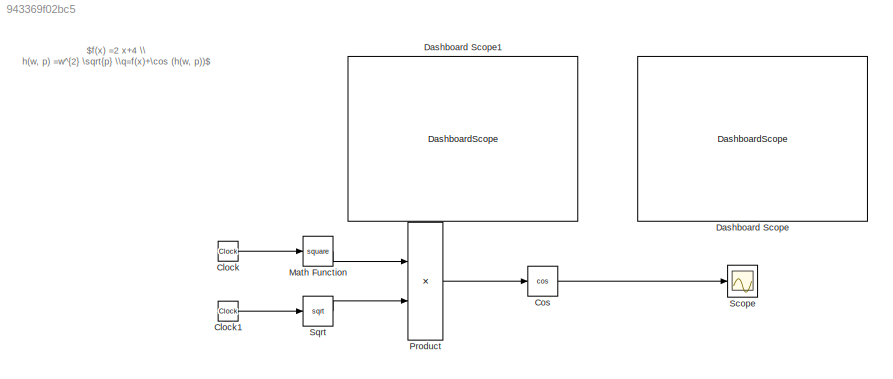
MODEL slx_943369f02bc5
KIND model
CONFIG AbsTol = auto
CONFIG EnableMultiTasking = off
CONFIG FixedStep = auto
CONFIG MaxStep = auto
CONFIG MinStep = auto
CONFIG RelTol = 1e-3
CONFIG SampleTimeConstraint = Unconstrained
CONFIG Solver = VariableStepAuto
CONFIG SolverName = VariableStepAuto
CONFIG StartTime = 0.0
CONFIG StopTime = 5
BLOCK [Clock] Clock
  Decimation = 1
BLOCK [Clock] Clock1
  Decimation = 1
BLOCK [Trigonometry] Cos
  Operator = cos
  Ports = [1, 1]
BLOCK [DashboardScope] Dashboard Scope
BLOCK [DashboardScope] Dashboard Scope1
BLOCK [Math] Math Function
  Operator = square
  Ports = [1, 1]
  SignedPower = off
BLOCK [Product] Product
  InputSameDT = off
  OutDataTypeStr = Inherit: Inherit via internal rule
  Ports = [2, 1]
  RndMeth = Floor
  SaturateOnIntegerOverflow = off
BLOCK [Scope] Scope
  Floating = off
  NumInputPorts = 1
  Ports = [1]
  ScopeSpecificationString = Simulink.scopes.TimeScopeBlockCfg('CurrentConfiguration', extmgr.ConfigurationSet(extmgr.Configuration('Core','General UI',true),extmgr.Configuration('Core','Source UI',true),extmgr.Configuration('Sources','WiredSimulink',true),extmgr.Configuration('Visuals','Time Domain',true,'SerializedDisplays',{struct('MinYLimReal','-1.24476','MaxYLimReal','1.24942','YLabelReal','','MinYLimMag','0.00000','MaxY...<+1358ch>
BLOCK [Sqrt] Sqrt
ANNOTATION (root): $f(x) =2 x+4 \\ h(w, p) =w^{2} \sqrt{p} \\q=f(x)+\cos (h(w, p))$
LINE Clock1:1 -> Sqrt:1
LINE Clock:1 -> Math Function:1
LINE Cos:1 -> Scope:1
LINE Math Function:1 -> Product:1
LINE Product:1 -> Cos:1
LINE Sqrt:1 -> Product:2
